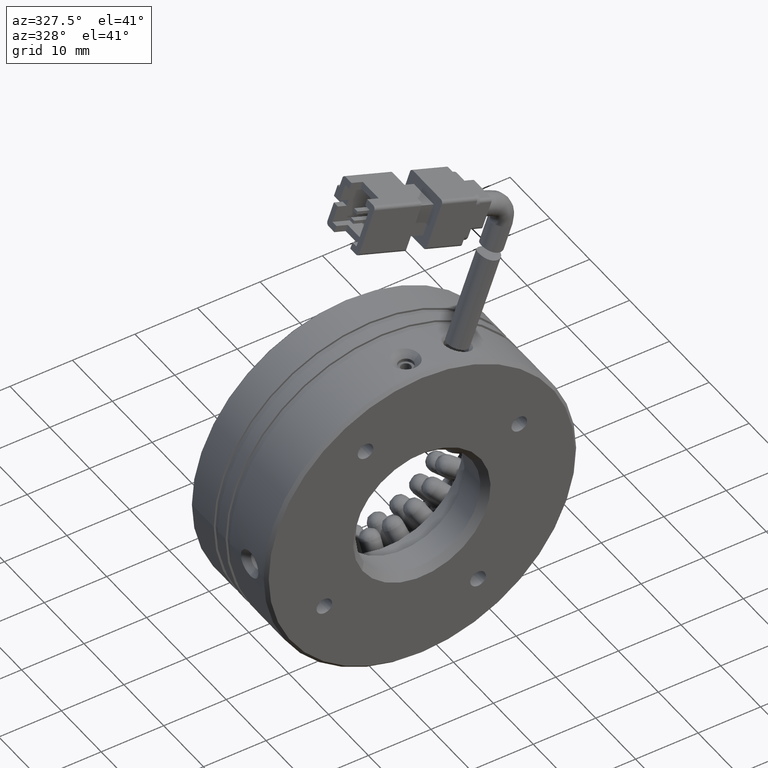
[diagram: clean part render]
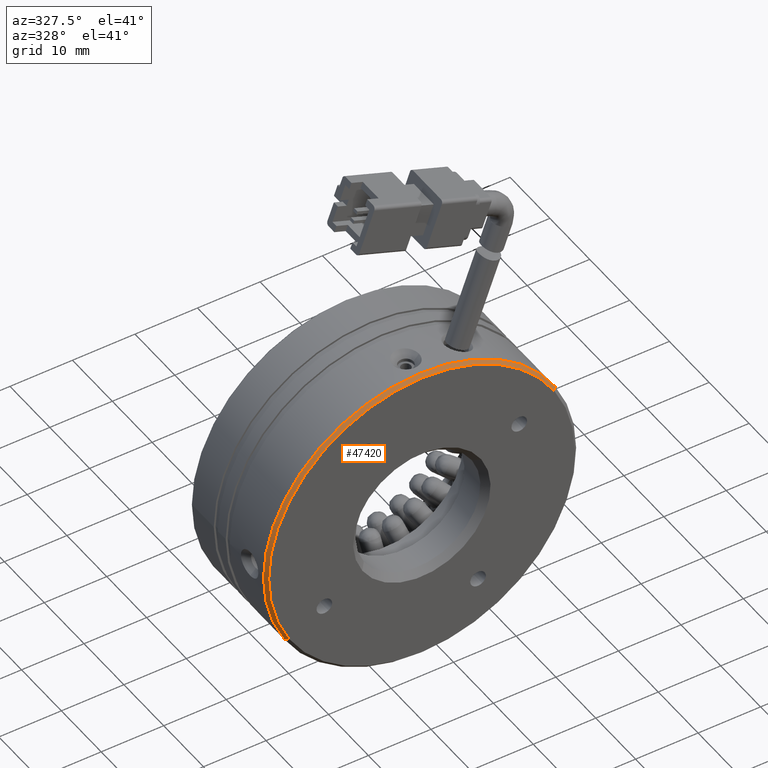
[diagram: same view with one face highlighted and labeled with its STEP entity id]
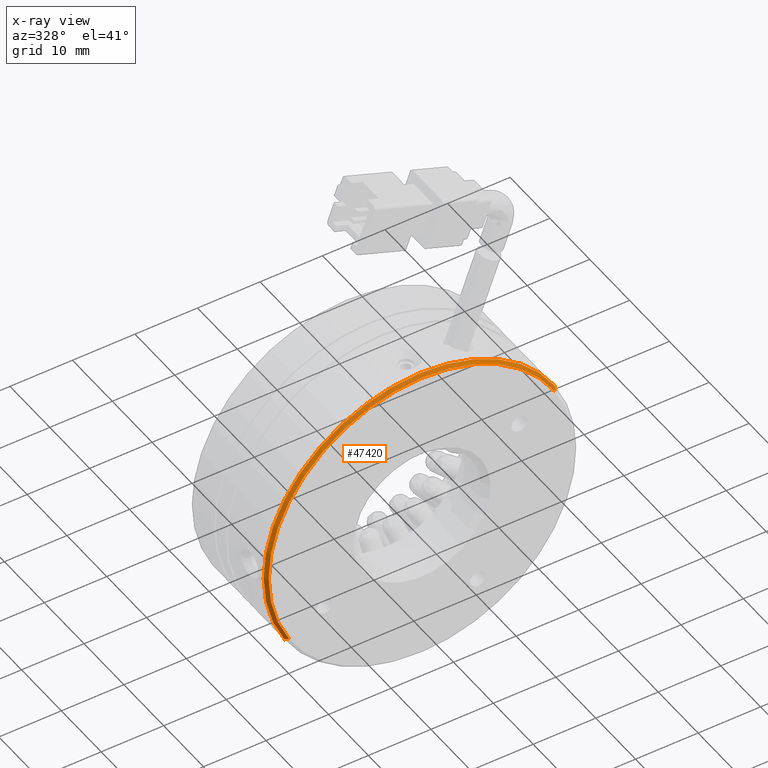
[diagram: x-ray of the same camera — body ghosted, the highlighted face saturated]
A machine part, auxiliary view. The second image highlights one B-rep face of the part: STEP entity #47420.
The next image is the same camera in x-ray: the body ghosted, the highlighted face saturated — about 0% of this face is hidden behind the body in this view.
In plain terms, the highlighted conical surface has half-angle 45 deg.
Its self-contained STEP definition (entity closure, byte-faithful):
#3939 = AXIS2_PLACEMENT_3D ( 'NONE', #16863, #44453, #20826 ) ;
#5485 = DIRECTION ( 'NONE',  ( 0.6123724356957938000, 0.7071067811865476800, 0.3535533905932744500 ) ) ;
#7251 = CARTESIAN_POINT ( 'NONE',  ( -115.3769873830991900, 2.627531206657416800, -12.50000000000003900 ) ) ;
#7694 = CARTESIAN_POINT ( 'NONE',  ( -72.07571719387726700, 2.627531206657423500, 12.50000000000003200 ) ) ;
#8894 = EDGE_CURVE ( 'NONE', #48556, #40831, #32440, .T. ) ;
#10233 = VECTOR ( 'NONE', #5485, 1000.000000000000100 ) ;
#10241 = DIRECTION ( 'NONE',  ( 1.229783673277247400E-016, -1.000000000000000000, 6.123233995736794400E-017 ) ) ;
#14544 = EDGE_CURVE ( 'NONE', #50466, #43337, #49975, .T. ) ;
#15015 = AXIS2_PLACEMENT_3D ( 'NONE', #33842, #10241, #37858 ) ;
#16791 = CARTESIAN_POINT ( 'NONE',  ( -72.50872989576949100, 2.127531206657423900, 12.25000000000002800 ) ) ;
#16863 = CARTESIAN_POINT ( 'NONE',  ( -93.72635228848822900, 2.127531206657420300, -6.039006100744259700E-015 ) ) ;
#20826 = DIRECTION ( 'NONE',  ( -0.8660254037844381500, -1.416100796715759600E-016, -0.5000000000000008900 ) ) ;
#25657 = DIRECTION ( 'NONE',  ( -1.295944383605203800E-016, 1.000000000000000000, -6.505213034913031500E-017 ) ) ;
#25763 = CARTESIAN_POINT ( 'NONE',  ( -115.3769873830991900, 2.627531206657415000, -12.50000000000003900 ) ) ;
#26176 = ORIENTED_EDGE ( 'NONE', *, *, #47282, .T. ) ;
#29714 = CIRCLE ( 'NONE', #3939, 24.50000000000002100 ) ;
#30284 = ORIENTED_EDGE ( 'NONE', *, *, #14544, .F. ) ;
#30287 = CONICAL_SURFACE ( 'NONE', #38283, 25.00000000000001100, 0.7853981633974482800 ) ;
#30325 = CIRCLE ( 'NONE', #15015, 25.00000000000001100 ) ;
#32440 = LINE ( 'NONE', #46856, #10233 ) ;
#32452 = ORIENTED_EDGE ( 'NONE', *, *, #8894, .T. ) ;
#33337 = ORIENTED_EDGE ( 'NONE', *, *, #41171, .T. ) ;
#33842 = CARTESIAN_POINT ( 'NONE',  ( -93.72635228848822900, 2.627531206657420300, -6.071532165918824800E-015 ) ) ;
#36511 = FACE_OUTER_BOUND ( 'NONE', #40694, .T. ) ;
#37858 = DIRECTION ( 'NONE',  ( -0.8660254037844379300, -2.081668171172167500E-016, -0.5000000000000011100 ) ) ;
#38283 = AXIS2_PLACEMENT_3D ( 'NONE', #49163, #25657, #41543 ) ;
#39583 = VECTOR ( 'NONE', #49861, 1000.000000000000200 ) ;
#40694 = EDGE_LOOP ( 'NONE', ( #26176, #32452, #33337, #30284 ) ) ;
#40831 = VERTEX_POINT ( 'NONE', #7694 ) ;
#41171 = EDGE_CURVE ( 'NONE', #40831, #43337, #30325, .T. ) ;
#41543 = DIRECTION ( 'NONE',  ( -0.8660254037844379300, -1.387778780781445200E-016, -0.5000000000000011100 ) ) ;
#43337 = VERTEX_POINT ( 'NONE', #25763 ) ;
#44453 = DIRECTION ( 'NONE',  ( -1.295944383605204800E-016, 1.000000000000000000, -6.505213034913035200E-017 ) ) ;
#45606 = CARTESIAN_POINT ( 'NONE',  ( -114.9439746812069700, 2.127531206657417200, -12.25000000000003900 ) ) ;
#46856 = CARTESIAN_POINT ( 'NONE',  ( -72.07571719387726700, 2.627531206657423500, 12.50000000000002800 ) ) ;
#47282 = EDGE_CURVE ( 'NONE', #50466, #48556, #29714, .T. ) ;
#47420 = ADVANCED_FACE ( 'NONE', ( #36511 ), #30287, .T. ) ;
#48556 = VERTEX_POINT ( 'NONE', #16791 ) ;
#49163 = CARTESIAN_POINT ( 'NONE',  ( -93.72635228848822900, 2.627531206657420300, -6.071532165918824800E-015 ) ) ;
#49861 = DIRECTION ( 'NONE',  ( -0.6123724356957941400, 0.7071067811865473500, -0.3535533905932745100 ) ) ;
#49975 = LINE ( 'NONE', #7251, #39583 ) ;
#50466 = VERTEX_POINT ( 'NONE', #45606 ) ;